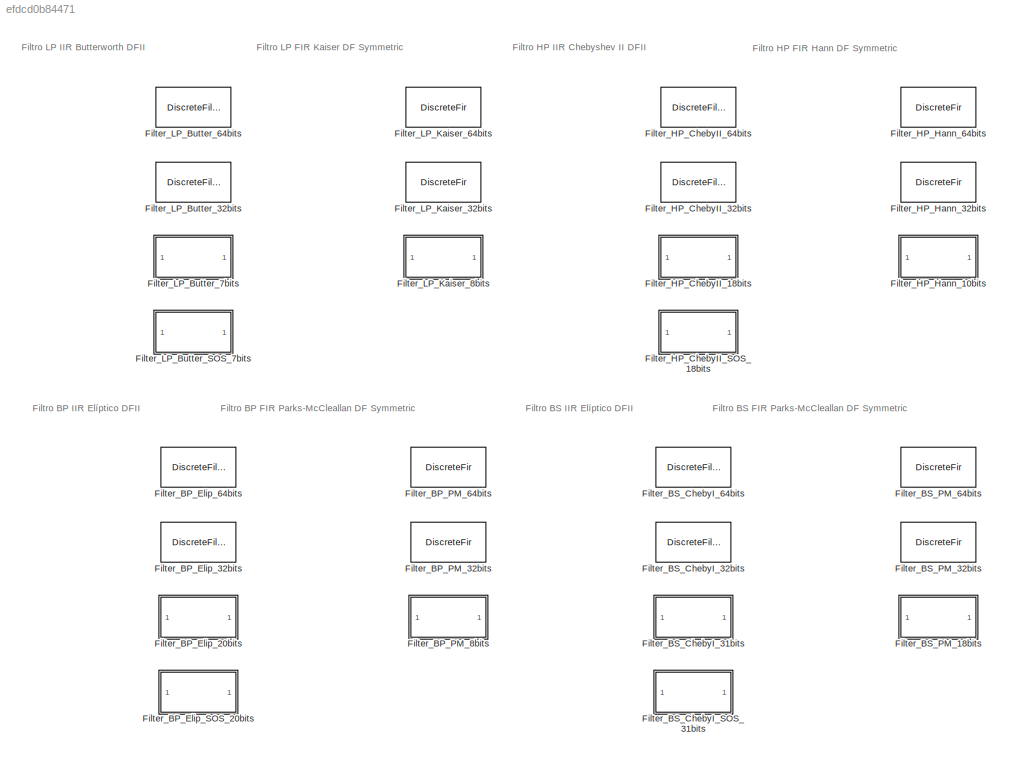
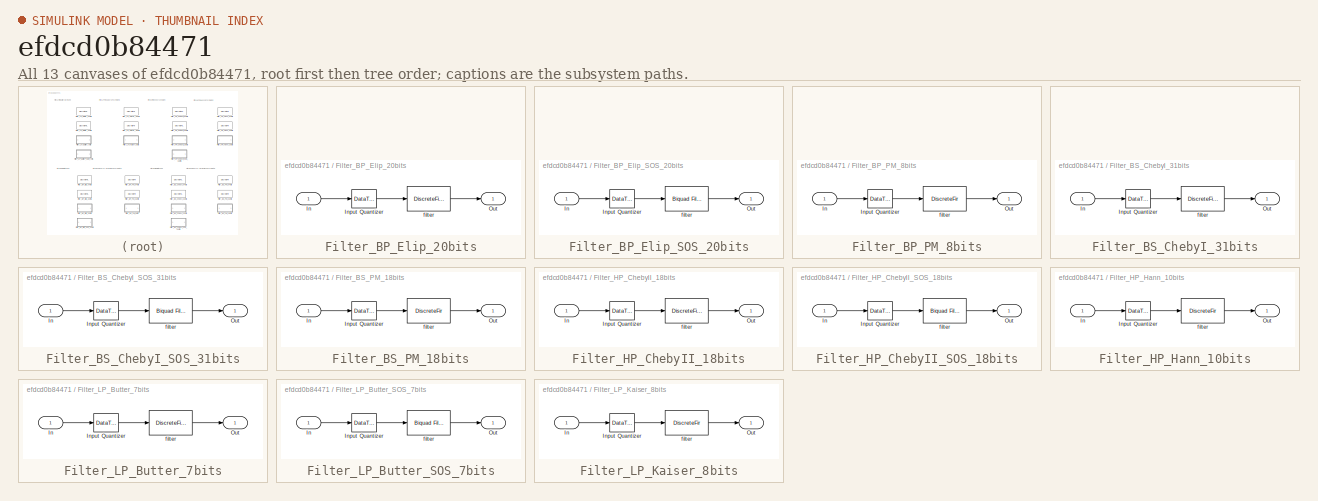
[diagram: thumbnail index - all 13 canvases of the model, root first then tree order]
MODEL slx_efdcd0b84471
KIND model
CONFIG AbsTol = auto
CONFIG EnableMultiTasking = off
CONFIG FixedStep = auto
CONFIG MaxStep = auto
CONFIG MinStep = auto
CONFIG RelTol = 1e-3
CONFIG SampleTimeConstraint = Unconstrained
CONFIG Solver = ode45
CONFIG SolverName = ode45
CONFIG StartTime = 0.0
CONFIG StopTime = 10.0
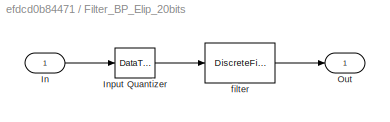
BLOCK [SubSystem] Filter_BP_Elip_20bits
  Ports = [1, 1]
  RequestExecContextInheritance = off
  Tag = BlockMethodSubSystem
BLOCK [Inport] Filter_BP_Elip_20bits/In
  IconDisplay = Port number
BLOCK [DataTypeConversion] Filter_BP_Elip_20bits/Input Quantizer
  OutDataTypeStr = fixdt(1,16,15)
  RndMeth = Round
BLOCK [Outport] Filter_BP_Elip_20bits/Out
  IconDisplay = Port number
BLOCK [DiscreteFilter] Filter_BP_Elip_20bits/filter
  DenAccumDataTypeStr = fixdt(true,39,32)
  DenCoefDataTypeStr = fixdt(true,20,17)
  DenProductDataTypeStr = fixdt(true,36,32)
  Denominator = [1 1.35628195146766672 2.3760241493758163 1.30250572686881982 0.922374867144239663]
  InputPortMap = u0
  InputProcessing = Columns as channels (frame based)
  NumAccumDataTypeStr = fixdt(true,39,36)
  NumCoefDataTypeStr = fixdt(true,20,21)
  NumProductDataTypeStr = fixdt(true,36,36)
  Numerator = [0.0974701238336903308 0.132939383916824333 0.234899653984624923 0.132939383916824333 0.0974701238336903308]
  OutDataTypeStr = fixdt(true,27,24)
  Ports = [1, 1]
  RndMeth = Convergent
  StateDataTypeStr = fixdt(true,16,15)
  a0EqualsOne = on
BLOCK [DiscreteFilter] Filter_BP_Elip_32bits
  Denominator = [1 1.35628195146766672 2.3760241493758163 1.30250572686881982 0.922374867144239663]
  InputPortMap = u0
  InputProcessing = Columns as channels (frame based)
  Numerator = [0.0974701238336903308 0.132939383916824333 0.234899653984624923 0.132939383916824333 0.0974701238336903308]
  Ports = [1, 1]
  Tag = BlockMethodSubSystem
  a0EqualsOne = on
BLOCK [DiscreteFilter] Filter_BP_Elip_64bits
  Denominator = [1 1.35628195146766672 2.3760241493758163 1.30250572686881982 0.922374867144239663]
  InputPortMap = u0
  InputProcessing = Columns as channels (frame based)
  Numerator = [0.0974701238336903308 0.132939383916824333 0.234899653984624923 0.132939383916824333 0.0974701238336903308]
  Ports = [1, 1]
  Tag = BlockMethodSubSystem
  a0EqualsOne = on
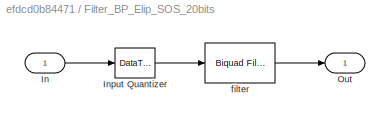
BLOCK [SubSystem] Filter_BP_Elip_SOS_20bits
  Ports = [1, 1]
  RequestExecContextInheritance = off
  Tag = BlockMethodSubSystem
BLOCK [Inport] Filter_BP_Elip_SOS_20bits/In
  IconDisplay = Port number
BLOCK [DataTypeConversion] Filter_BP_Elip_SOS_20bits/Input Quantizer
  OutDataTypeStr = fixdt(1,16,15)
  RndMeth = Round
BLOCK [Outport] Filter_BP_Elip_SOS_20bits/Out
  IconDisplay = Port number
BLOCK [Reference] Filter_BP_Elip_SOS_20bits/filter  REF=dsparch4/Biquad Filter
  Ports = [1, 1]
  SourceBlock = dsparch4/Biquad Filter
  SourceProductBaseCode = DS
  SourceProductName = DSP System Toolbox
  SourceType = Biquad Filter
  UserDataPersistent = on
BLOCK [DiscreteFir] Filter_BP_PM_32bits
  Coefficients = [-0.0433412092937293658 0.00428125381265335829 0.00433549487836447974 0.00392877576103001919 0.00473672650552339151 -0.00113536747739367079 0.00225664087871407099 0.0129845358018076552 -0.00161672199950467889 -0.0104604010793571591 0.0163185558804867653 0.0128200383399435375 -0.0195811015916752505 0.00139459356195246087 0.0265908628917521095 -0.00801815848233358545 -0.0159846853288865345 0.0182879...<+1281ch>  <repeated x3 — deduplicated; at blocks: Filter_BP_PM_32bits, Filter_BP_PM_64bits, filter>
  FilterStructure = Direct form symmetric
  InputPortMap = u0
  InputProcessing = Columns as channels (frame based)
  OutputPortMap = o0
  Ports = [1, 1]
  Tag = BlockMethodSubSystem
BLOCK [DiscreteFir] Filter_BP_PM_64bits
  FilterStructure = Direct form symmetric
  InputPortMap = u0
  InputProcessing = Columns as channels (frame based)
  OutputPortMap = o0
  Ports = [1, 1]
  Tag = BlockMethodSubSystem
BLOCK [SubSystem] Filter_BP_PM_8bits
  Ports = [1, 1]
  RequestExecContextInheritance = off
  Tag = BlockMethodSubSystem
BLOCK [Inport] Filter_BP_PM_8bits/In
  IconDisplay = Port number
BLOCK [DataTypeConversion] Filter_BP_PM_8bits/Input Quantizer
  OutDataTypeStr = fixdt(1,16,15)
  RndMeth = Round
BLOCK [Outport] Filter_BP_PM_8bits/Out
  IconDisplay = Port number
BLOCK [DiscreteFir] Filter_BP_PM_8bits/filter
  AccumDataTypeStr = fixdt(true,27,25)
  CoefDataTypeStr = fixdt(true,8,10)
  FilterStructure = Direct form symmetric
  InputPortMap = u0
  InputProcessing = Columns as channels (frame based)
  OutDataTypeStr = fixdt(true,27,25)
  OutputPortMap = o0
  Ports = [1, 1]
  ProductDataTypeStr = fixdt(true,24,25)
  RndMeth = Convergent
  TapSumDataTypeStr = fixdt(true,17,15)
BLOCK [SubSystem] Filter_BS_ChebyI_31bits
  Ports = [1, 1]
  RequestExecContextInheritance = off
  Tag = BlockMethodSubSystem
BLOCK [Inport] Filter_BS_ChebyI_31bits/In
  IconDisplay = Port number
BLOCK [DataTypeConversion] Filter_BS_ChebyI_31bits/Input Quantizer
  OutDataTypeStr = fixdt(1,16,15)
  RndMeth = Round
BLOCK [Outport] Filter_BS_ChebyI_31bits/Out
  IconDisplay = Port number
BLOCK [DiscreteFilter] Filter_BS_ChebyI_31bits/filter
  DenAccumDataTypeStr = fixdt(true,40,28)
  DenCoefDataTypeStr = fixdt(true,31,24)
  DenProductDataTypeStr = fixdt(true,47,39)
  Denominator = [1 -2.66499543662062877 8.79464618040259083 -15.0964799784515531 27.5316314023528577 -33.7583267920149481 42.2783703159670097 -38.2580281440592245 35.0287520822531278 -23.1519310706400248 15.6125822995039183 -7.05648534288835538 3.38096176201517462 -0.836935413720374832 0.255793246742077596]  <repeated x3 — deduplicated; at blocks: filter, Filter_BS_ChebyI_32bits, Filter_BS_ChebyI_64bits>
  InputPortMap = u0
  InputProcessing = Columns as channels (frame based)
  NumAccumDataTypeStr = fixdt(true,40,28)
  NumCoefDataTypeStr = fixdt(true,31,24)
  NumProductDataTypeStr = fixdt(true,47,39)
  Numerator = [0.526868000951233872 -1.54203566956132732 5.62231543277647106 -10.600101182726668 21.298995446777635 -28.6634656336700679 39.4931897641130405 -39.2119772064789842 39.4931897641130405 -28.6634656336700679 21.298995446777635 -10.600101182726668 5.62231543277647106 -1.54203566956132732 0.526868000951233872]  <repeated x3 — deduplicated; at blocks: filter, Filter_BS_ChebyI_32bits, Filter_BS_ChebyI_64bits>
  OutDataTypeStr = fixdt(true,16,4)
  Ports = [1, 1]
  RndMeth = Convergent
  StateDataTypeStr = fixdt(true,16,15)
  a0EqualsOne = on
BLOCK [DiscreteFilter] Filter_BS_ChebyI_32bits
  InputPortMap = u0
  InputProcessing = Columns as channels (frame based)
  Ports = [1, 1]
  Tag = BlockMethodSubSystem
  a0EqualsOne = on
BLOCK [DiscreteFilter] Filter_BS_ChebyI_64bits
  InputPortMap = u0
  InputProcessing = Columns as channels (frame based)
  Ports = [1, 1]
  Tag = BlockMethodSubSystem
  a0EqualsOne = on
BLOCK [SubSystem] Filter_BS_ChebyI_SOS_31bits
  Ports = [1, 1]
  RequestExecContextInheritance = off
  Tag = BlockMethodSubSystem
BLOCK [Inport] Filter_BS_ChebyI_SOS_31bits/In
  IconDisplay = Port number
BLOCK [DataTypeConversion] Filter_BS_ChebyI_SOS_31bits/Input Quantizer
  OutDataTypeStr = fixdt(1,16,15)
  RndMeth = Round
BLOCK [Outport] Filter_BS_ChebyI_SOS_31bits/Out
  IconDisplay = Port number
BLOCK [Reference] Filter_BS_ChebyI_SOS_31bits/filter  REF=dsparch4/Biquad Filter
  Ports = [1, 1]
  SourceBlock = dsparch4/Biquad Filter
  SourceProductBaseCode = DS
  SourceProductName = DSP System Toolbox
  SourceType = Biquad Filter
  UserDataPersistent = on
BLOCK [SubSystem] Filter_BS_PM_18bits
  Ports = [1, 1]
  RequestExecContextInheritance = off
  Tag = BlockMethodSubSystem
BLOCK [Inport] Filter_BS_PM_18bits/In
  IconDisplay = Port number
BLOCK [DataTypeConversion] Filter_BS_PM_18bits/Input Quantizer
  OutDataTypeStr = fixdt(1,16,15)
  RndMeth = Round
BLOCK [Outport] Filter_BS_PM_18bits/Out
  IconDisplay = Port number
BLOCK [DiscreteFir] Filter_BS_PM_18bits/filter
  AccumDataTypeStr = fixdt(true,35,32)
  CoefDataTypeStr = fixdt(true,18,17)
  Coefficients = [0.00939244855741547431 0.00168644324503250398 -0.00123334499269933651 0.00145794752474150894 -0.00170828863653412779 0.0010371674316927424 -0.000634686404143752943 0.00136311298569206278 -0.00129284830014917774 0.000232789421018792837 -0.000621585322147632049 0.00144095326498087451 -0.000402030343464907663 -9.93042424858531166e-05 -0.00117660388067255444 0.000857139817899975971 0.0004755766975208...<+5732ch>  <repeated x3 — deduplicated; at blocks: filter, Filter_BS_PM_32bits, Filter_BS_PM_64bits>
  FilterStructure = Direct form symmetric
  InputPortMap = u0
  InputProcessing = Columns as channels (frame based)
  OutDataTypeStr = fixdt(true,35,32)
  OutputPortMap = o0
  Ports = [1, 1]
  ProductDataTypeStr = fixdt(true,34,32)
  RndMeth = Convergent
  TapSumDataTypeStr = fixdt(true,17,15)
BLOCK [DiscreteFir] Filter_BS_PM_32bits
  FilterStructure = Direct form symmetric
  InputPortMap = u0
  InputProcessing = Columns as channels (frame based)
  OutputPortMap = o0
  Ports = [1, 1]
  Tag = BlockMethodSubSystem
BLOCK [DiscreteFir] Filter_BS_PM_64bits
  FilterStructure = Direct form symmetric
  InputPortMap = u0
  InputProcessing = Columns as channels (frame based)
  OutputPortMap = o0
  Ports = [1, 1]
  Tag = BlockMethodSubSystem
BLOCK [SubSystem] Filter_HP_ChebyII_18bits
  Ports = [1, 1]
  RequestExecContextInheritance = off
  Tag = BlockMethodSubSystem
BLOCK [Inport] Filter_HP_ChebyII_18bits/In
  IconDisplay = Port number
BLOCK [DataTypeConversion] Filter_HP_ChebyII_18bits/Input Quantizer
  OutDataTypeStr = fixdt(1,16,15)
  RndMeth = Round
BLOCK [Outport] Filter_HP_ChebyII_18bits/Out
  IconDisplay = Port number
BLOCK [DiscreteFilter] Filter_HP_ChebyII_18bits/filter
  DenAccumDataTypeStr = fixdt(true,40,31)
  DenCoefDataTypeStr = fixdt(true,18,16)
  DenProductDataTypeStr = fixdt(true,34,31)
  Denominator = [1 0.877081919298363322 1.20330623409765192 0.426634402615273078 0.249553249203958549 0.0208863375040826173 0.00662248810328856016]
  InputPortMap = u0
  InputProcessing = Columns as channels (frame based)
  NumAccumDataTypeStr = fixdt(true,40,33)
  NumCoefDataTypeStr = fixdt(true,18,18)
  NumProductDataTypeStr = fixdt(true,34,33)
  Numerator = [0.0559188313546608654 -0.136376837541798468 0.237261208219189834 -0.275765557755878132 0.237261208219190084 -0.136376837541798718 0.0559188313546609347]
  OutDataTypeStr = fixdt(true,16,12)
  Ports = [1, 1]
  RndMeth = Convergent
  StateDataTypeStr = fixdt(true,16,15)
  a0EqualsOne = on
BLOCK [DiscreteFilter] Filter_HP_ChebyII_32bits
  Denominator = [1 0.877081919298363322 1.20330623409765192 0.426634402615273078 0.249553249203958549 0.0208863375040826173 0.00662248810328856016]
  InputPortMap = u0
  InputProcessing = Columns as channels (frame based)
  Numerator = [0.0559188313546608654 -0.136376837541798468 0.237261208219189834 -0.275765557755878132 0.237261208219190084 -0.136376837541798718 0.0559188313546609347]
  Ports = [1, 1]
  Tag = BlockMethodSubSystem
  a0EqualsOne = on
BLOCK [DiscreteFilter] Filter_HP_ChebyII_64bits
  Denominator = [1 0.877081919298363322 1.20330623409765192 0.426634402615272967 0.249553249203958494 0.0208863375040825895 0.00662248810328856363]
  InputPortMap = u0
  InputProcessing = Columns as channels (frame based)
  Numerator = [0.0559188313546608654 -0.13637683754179869 0.237261208219190139 -0.27576555775587841 0.237261208219190139 -0.13637683754179869 0.0559188313546608584]
  Ports = [1, 1]
  Tag = BlockMethodSubSystem
  a0EqualsOne = on
BLOCK [SubSystem] Filter_HP_ChebyII_SOS_18bits
  Ports = [1, 1]
  RequestExecContextInheritance = off
  Tag = BlockMethodSubSystem
BLOCK [Inport] Filter_HP_ChebyII_SOS_18bits/In
  IconDisplay = Port number
BLOCK [DataTypeConversion] Filter_HP_ChebyII_SOS_18bits/Input Quantizer
  OutDataTypeStr = fixdt(1,16,15)
  RndMeth = Round
BLOCK [Outport] Filter_HP_ChebyII_SOS_18bits/Out
  IconDisplay = Port number
BLOCK [Reference] Filter_HP_ChebyII_SOS_18bits/filter  REF=dsparch4/Biquad Filter
  Ports = [1, 1]
  SourceBlock = dsparch4/Biquad Filter
  SourceProductBaseCode = DS
  SourceProductName = DSP System Toolbox
  SourceType = Biquad Filter
  UserDataPersistent = on
BLOCK [SubSystem] Filter_HP_Hann_10bits
  Ports = [1, 1]
  RequestExecContextInheritance = off
  Tag = BlockMethodSubSystem
BLOCK [Inport] Filter_HP_Hann_10bits/In
  IconDisplay = Port number
BLOCK [DataTypeConversion] Filter_HP_Hann_10bits/Input Quantizer
  OutDataTypeStr = fixdt(1,16,15)
  RndMeth = Round
BLOCK [Outport] Filter_HP_Hann_10bits/Out
  IconDisplay = Port number
BLOCK [DiscreteFir] Filter_HP_Hann_10bits/filter
  AccumDataTypeStr = fixdt(true,27,25)
  CoefDataTypeStr = fixdt(true,10,10)
  Coefficients = [-3.16228700308905018e-05 6.58621006149563763e-05 0.000776097424594572832 -0.00123190726621532883 -0.00166048429484726384 0.00472150775562455317 0.000207579074215400968 -0.0098865670153832335 0.00661569202063748852 0.013228130452963581 -0.0204947917682235907 -0.00852732671830981441 0.0401741168966580214 -0.0129883671048673984 -0.0612137762552903905 0.0693172305105436287 0.0774510719237060941 -0.30...<+454ch>  <repeated x3 — deduplicated; at blocks: filter, Filter_HP_Hann_32bits, Filter_HP_Hann_64bits>
  FilterStructure = Direct form symmetric
  InputPortMap = u0
  InputProcessing = Columns as channels (frame based)
  OutDataTypeStr = fixdt(true,27,25)
  OutputPortMap = o0
  Ports = [1, 1]
  ProductDataTypeStr = fixdt(true,26,25)
  RndMeth = Convergent
  TapSumDataTypeStr = fixdt(true,17,15)
BLOCK [DiscreteFir] Filter_HP_Hann_32bits
  FilterStructure = Direct form symmetric
  InputPortMap = u0
  InputProcessing = Columns as channels (frame based)
  OutputPortMap = o0
  Ports = [1, 1]
  Tag = BlockMethodSubSystem
BLOCK [DiscreteFir] Filter_HP_Hann_64bits
  FilterStructure = Direct form symmetric
  InputPortMap = u0
  InputProcessing = Columns as channels (frame based)
  OutputPortMap = o0
  Ports = [1, 1]
  Tag = BlockMethodSubSystem
BLOCK [DiscreteFilter] Filter_LP_Butter_32bits
  Denominator = [1 0.169613480636834985 1.0725472360938022 0.126588905837326127 0.296672196811545885 0.0216830884738356162 0.0209853628033078755 0.000713622450830073379 0.000177472924043483085]
  InputPortMap = u0
  InputProcessing = Columns as channels (frame based)
  Numerator = [0.0188176788491913188 0.150541430793530551 0.526895007777356872 1.05379001555471374 1.31723751944339229 1.05379001555471374 0.526895007777356872 0.150541430793530551 0.0188176788491913188]  <repeated x3 — deduplicated; at blocks: Filter_LP_Butter_32bits, Filter_LP_Butter_64bits, filter>
  Ports = [1, 1]
  Tag = BlockMethodSubSystem
  a0EqualsOne = on
BLOCK [DiscreteFilter] Filter_LP_Butter_64bits
  Denominator = [1 0.169613480636834985 1.0725472360938022 0.126588905837326127 0.296672196811545885 0.0216830884738356162 0.0209853628033078755 0.000713622450830073379 0.000177472924043483085]
  InputPortMap = u0
  InputProcessing = Columns as channels (frame based)
  Ports = [1, 1]
  Tag = BlockMethodSubSystem
  a0EqualsOne = on
BLOCK [SubSystem] Filter_LP_Butter_7bits
  Ports = [1, 1]
  RequestExecContextInheritance = off
  Tag = BlockMethodSubSystem
BLOCK [Inport] Filter_LP_Butter_7bits/In
  IconDisplay = Port number
BLOCK [DataTypeConversion] Filter_LP_Butter_7bits/Input Quantizer
  OutDataTypeStr = fixdt(1,16,15)
  RndMeth = Round
BLOCK [Outport] Filter_LP_Butter_7bits/Out
  IconDisplay = Port number
BLOCK [DiscreteFilter] Filter_LP_Butter_7bits/filter
  DenAccumDataTypeStr = fixdt(true,40,20)
  DenCoefDataTypeStr = fixdt(true,7,5)
  DenProductDataTypeStr = fixdt(true,23,20)
  Denominator = [1 0.169613480636834985 1.0725472360938022 0.126588905837326127 0.296672196811545885 0.0216830884738356162 0.0209853628033078755 0.000713622450830073379 0.000177472924043483085]
  InputPortMap = u0
  InputProcessing = Columns as channels (frame based)
  NumAccumDataTypeStr = fixdt(true,40,20)
  NumCoefDataTypeStr = fixdt(true,7,5)
  NumProductDataTypeStr = fixdt(true,23,20)
  OutDataTypeStr = fixdt(true,16,9)
  Ports = [1, 1]
  RndMeth = Convergent
  StateDataTypeStr = fixdt(true,16,15)
  a0EqualsOne = on
BLOCK [SubSystem] Filter_LP_Butter_SOS_7bits
  Ports = [1, 1]
  RequestExecContextInheritance = off
  Tag = BlockMethodSubSystem
BLOCK [Inport] Filter_LP_Butter_SOS_7bits/In
  IconDisplay = Port number
BLOCK [DataTypeConversion] Filter_LP_Butter_SOS_7bits/Input Quantizer
  OutDataTypeStr = fixdt(1,16,15)
  RndMeth = Round
BLOCK [Outport] Filter_LP_Butter_SOS_7bits/Out
  IconDisplay = Port number
BLOCK [Reference] Filter_LP_Butter_SOS_7bits/filter  REF=dsparch4/Biquad Filter
  Ports = [1, 1]
  SourceBlock = dsparch4/Biquad Filter
  SourceProductBaseCode = DS
  SourceProductName = DSP System Toolbox
  SourceType = Biquad Filter
  UserDataPersistent = on
BLOCK [DiscreteFir] Filter_LP_Kaiser_32bits
  Coefficients = [0.0273632501347615166 -0.0143274016333116705 -0.0496900071545827646 0.0522341743948118928 0.0722918445052733033 -0.143149069954147889 -0.0891767371893470578 0.536803318067287871 0.961649065426961824 0.536803318067287871 -0.0891767371893470578 -0.143149069954147889 0.0722918445052733033 0.0522341743948118928 -0.0496900071545827646 -0.0143274016333116705 0.0273632501347615166]  <repeated x3 — deduplicated; at blocks: Filter_LP_Kaiser_32bits, Filter_LP_Kaiser_64bits, filter>
  FilterStructure = Direct form symmetric
  InputPortMap = u0
  InputProcessing = Columns as channels (frame based)
  OutputPortMap = o0
  Ports = [1, 1]
  Tag = BlockMethodSubSystem
BLOCK [DiscreteFir] Filter_LP_Kaiser_64bits
  FilterStructure = Direct form symmetric
  InputPortMap = u0
  InputProcessing = Columns as channels (frame based)
  OutputPortMap = o0
  Ports = [1, 1]
  Tag = BlockMethodSubSystem
BLOCK [SubSystem] Filter_LP_Kaiser_8bits
  Ports = [1, 1]
  RequestExecContextInheritance = off
  Tag = BlockMethodSubSystem
BLOCK [Inport] Filter_LP_Kaiser_8bits/In
  IconDisplay = Port number
BLOCK [DataTypeConversion] Filter_LP_Kaiser_8bits/Input Quantizer
  OutDataTypeStr = fixdt(1,16,15)
  RndMeth = Round
BLOCK [Outport] Filter_LP_Kaiser_8bits/Out
  IconDisplay = Port number
BLOCK [DiscreteFir] Filter_LP_Kaiser_8bits/filter
  AccumDataTypeStr = fixdt(true,25,22)
  CoefDataTypeStr = fixdt(true,8,7)
  FilterStructure = Direct form symmetric
  InputPortMap = u0
  InputProcessing = Columns as channels (frame based)
  OutDataTypeStr = fixdt(true,25,22)
  OutputPortMap = o0
  Ports = [1, 1]
  ProductDataTypeStr = fixdt(true,24,22)
  RndMeth = Convergent
  TapSumDataTypeStr = fixdt(true,17,15)
ANNOTATION (root): Filtro BP FIR Parks-McCleallan DF Symmetric
ANNOTATION (root): Filtro BP IIR Elíptico DFII
ANNOTATION (root): Filtro BS FIR Parks-McCleallan DF Symmetric
ANNOTATION (root): Filtro BS IIR Elíptico DFII
ANNOTATION (root): Filtro HP FIR Hann DF Symmetric
ANNOTATION (root): Filtro HP IIR Chebyshev II DFII
ANNOTATION (root): Filtro LP FIR Kaiser DF Symmetric
ANNOTATION (root): Filtro LP IIR Butterworth DFII
LINE Filter_BP_Elip_20bits/In:1 -> Filter_BP_Elip_20bits/Input Quantizer:1
LINE Filter_BP_Elip_20bits/Input Quantizer:1 -> Filter_BP_Elip_20bits/filter:1
LINE Filter_BP_Elip_20bits/filter:1 -> Filter_BP_Elip_20bits/Out:1
LINE Filter_BP_Elip_SOS_20bits/In:1 -> Filter_BP_Elip_SOS_20bits/Input Quantizer:1
LINE Filter_BP_Elip_SOS_20bits/Input Quantizer:1 -> Filter_BP_Elip_SOS_20bits/filter:1
LINE Filter_BP_Elip_SOS_20bits/filter:1 -> Filter_BP_Elip_SOS_20bits/Out:1
LINE Filter_BP_PM_8bits/In:1 -> Filter_BP_PM_8bits/Input Quantizer:1
LINE Filter_BP_PM_8bits/Input Quantizer:1 -> Filter_BP_PM_8bits/filter:1
LINE Filter_BP_PM_8bits/filter:1 -> Filter_BP_PM_8bits/Out:1
LINE Filter_BS_ChebyI_31bits/In:1 -> Filter_BS_ChebyI_31bits/Input Quantizer:1
LINE Filter_BS_ChebyI_31bits/Input Quantizer:1 -> Filter_BS_ChebyI_31bits/filter:1
LINE Filter_BS_ChebyI_31bits/filter:1 -> Filter_BS_ChebyI_31bits/Out:1
LINE Filter_BS_ChebyI_SOS_31bits/In:1 -> Filter_BS_ChebyI_SOS_31bits/Input Quantizer:1
LINE Filter_BS_ChebyI_SOS_31bits/Input Quantizer:1 -> Filter_BS_ChebyI_SOS_31bits/filter:1
LINE Filter_BS_ChebyI_SOS_31bits/filter:1 -> Filter_BS_ChebyI_SOS_31bits/Out:1
LINE Filter_BS_PM_18bits/In:1 -> Filter_BS_PM_18bits/Input Quantizer:1
LINE Filter_BS_PM_18bits/Input Quantizer:1 -> Filter_BS_PM_18bits/filter:1
LINE Filter_BS_PM_18bits/filter:1 -> Filter_BS_PM_18bits/Out:1
LINE Filter_HP_ChebyII_18bits/In:1 -> Filter_HP_ChebyII_18bits/Input Quantizer:1
LINE Filter_HP_ChebyII_18bits/Input Quantizer:1 -> Filter_HP_ChebyII_18bits/filter:1
LINE Filter_HP_ChebyII_18bits/filter:1 -> Filter_HP_ChebyII_18bits/Out:1
LINE Filter_HP_ChebyII_SOS_18bits/In:1 -> Filter_HP_ChebyII_SOS_18bits/Input Quantizer:1
LINE Filter_HP_ChebyII_SOS_18bits/Input Quantizer:1 -> Filter_HP_ChebyII_SOS_18bits/filter:1
LINE Filter_HP_ChebyII_SOS_18bits/filter:1 -> Filter_HP_ChebyII_SOS_18bits/Out:1
LINE Filter_HP_Hann_10bits/In:1 -> Filter_HP_Hann_10bits/Input Quantizer:1
LINE Filter_HP_Hann_10bits/Input Quantizer:1 -> Filter_HP_Hann_10bits/filter:1
LINE Filter_HP_Hann_10bits/filter:1 -> Filter_HP_Hann_10bits/Out:1
LINE Filter_LP_Butter_7bits/In:1 -> Filter_LP_Butter_7bits/Input Quantizer:1
LINE Filter_LP_Butter_7bits/Input Quantizer:1 -> Filter_LP_Butter_7bits/filter:1
LINE Filter_LP_Butter_7bits/filter:1 -> Filter_LP_Butter_7bits/Out:1
LINE Filter_LP_Butter_SOS_7bits/In:1 -> Filter_LP_Butter_SOS_7bits/Input Quantizer:1
LINE Filter_LP_Butter_SOS_7bits/Input Quantizer:1 -> Filter_LP_Butter_SOS_7bits/filter:1
LINE Filter_LP_Butter_SOS_7bits/filter:1 -> Filter_LP_Butter_SOS_7bits/Out:1
LINE Filter_LP_Kaiser_8bits/In:1 -> Filter_LP_Kaiser_8bits/Input Quantizer:1
LINE Filter_LP_Kaiser_8bits/Input Quantizer:1 -> Filter_LP_Kaiser_8bits/filter:1
LINE Filter_LP_Kaiser_8bits/filter:1 -> Filter_LP_Kaiser_8bits/Out:1
